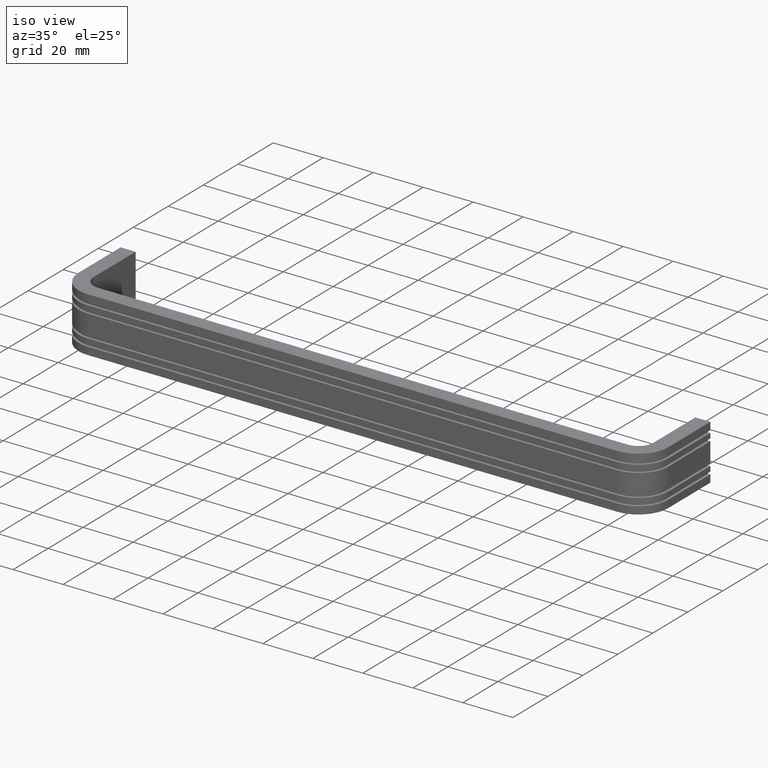
[diagram: clean part render]
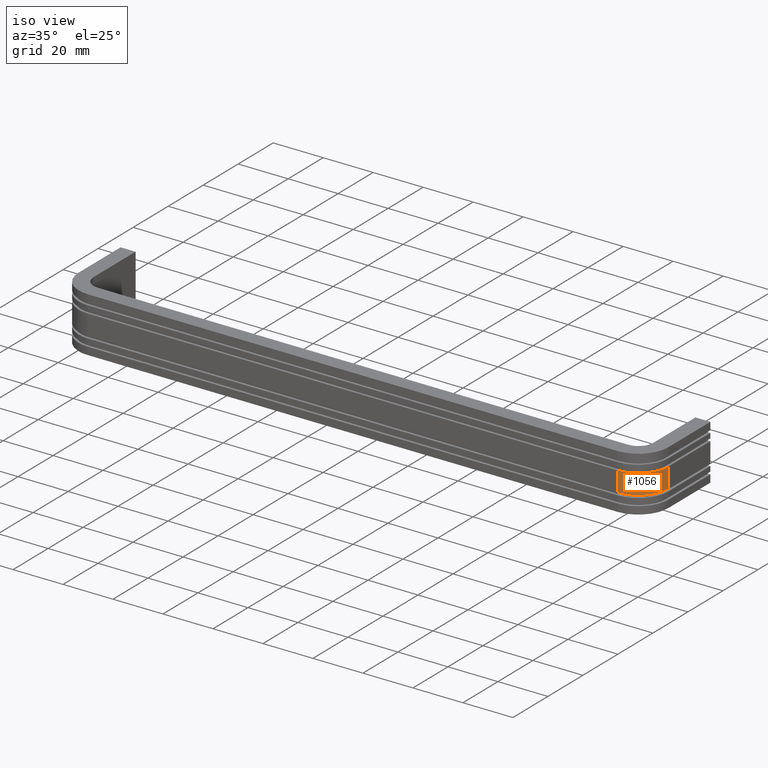
[diagram: same view with one face highlighted and labeled with its STEP entity id]
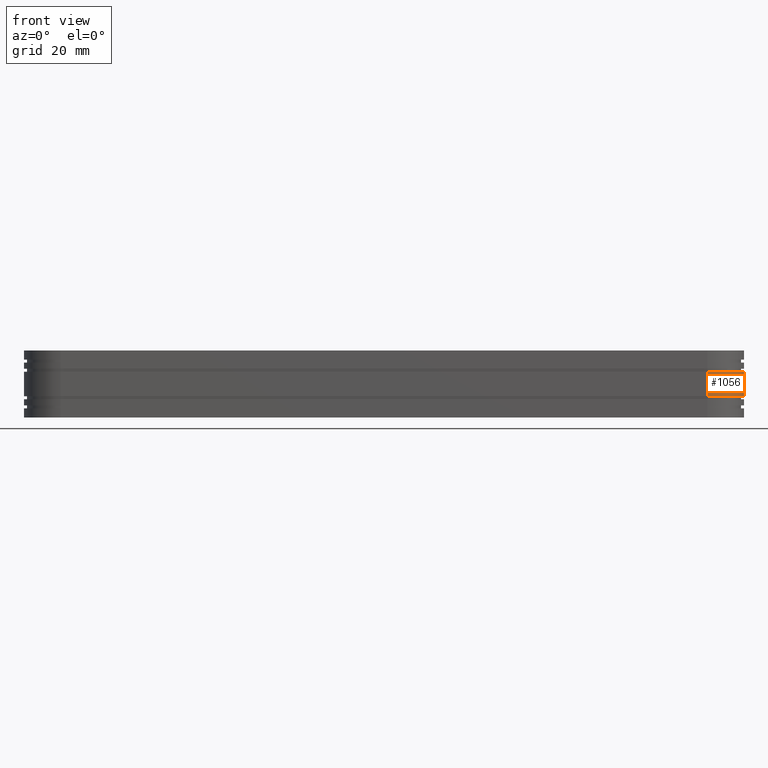
[diagram: same view with one face highlighted and labeled with its STEP entity id]
A machine part, iso view. The second image highlights one B-rep face of the part: STEP entity #1056.
A second angle (front view) of the same face is appended — the face is thin or edge-on in the first view.
In plain terms, the highlighted face is a freeform B-spline surface patch.
Its self-contained STEP definition (entity closure, byte-faithful):
#581=CARTESIAN_POINT('',(232.999900000000000,-24.0,4.0));
#582=VERTEX_POINT('',#581);
#590=CARTESIAN_POINT('',(232.999900000000000,-24.0,-4.0));
#591=VERTEX_POINT('',#590);
#592=CARTESIAN_POINT('',(232.999900000000000,-24.0,-4.0));
#593=CARTESIAN_POINT('',(232.999900000000000,-24.0,4.0));
#594=QUASI_UNIFORM_CURVE('',1,(#592,#593),.UNSPECIFIED.,.F.,.U.);
#595=EDGE_CURVE('',#591,#582,#594,.T.);
#1004=CARTESIAN_POINT('',(232.995787899706700,-23.685876620305521,-4.200000000000000));
#1005=CARTESIAN_POINT('',(232.995787899706700,-23.685876620305521,4.205000000000000));
#1006=CARTESIAN_POINT('',(233.341807349163390,-36.899826281864229,-4.199999999999999));
#1007=CARTESIAN_POINT('',(233.341807349163390,-36.899826281864229,4.205000000000001));
#1008=CARTESIAN_POINT('',(220.156051270368810,-35.970293201150056,-4.200000000000000));
#1009=CARTESIAN_POINT('',(220.156051270368810,-35.970293201150056,4.205000000000000));
#1017=(BOUNDED_SURFACE()B_SPLINE_SURFACE(1,2,((#1004,#1006,#1008),(#1005,#1007,#1009)),.UNSPECIFIED.,.F.,.F.,.U.)B_SPLINE_SURFACE_WITH_KNOTS((2,2),(3,3),(0.0,8.405000000000001),(0.0,21.253717511290890),.UNSPECIFIED.)GEOMETRIC_REPRESENTATION_ITEM()RATIONAL_B_SPLINE_SURFACE(((1.0,0.670944078209729,0.996392935321324),(1.0,0.670944078209729,0.996392935321324)))REPRESENTATION_ITEM('')SURFACE());
#1018=CARTESIAN_POINT('',(220.999900000000000,-36.0,4.0));
#1019=VERTEX_POINT('',#1018);
#1020=CARTESIAN_POINT('',(220.999900000000000,-36.000000000000007,4.0));
#1021=CARTESIAN_POINT('',(232.999900000000050,-36.000000000000014,4.000000000000000));
#1022=CARTESIAN_POINT('',(232.999900000000000,-24.0,4.0));
#1030=(BOUNDED_CURVE()B_SPLINE_CURVE(2,(#1020,#1021,#1022),.UNSPECIFIED.,.F.,.U.)CURVE()GEOMETRIC_REPRESENTATION_ITEM()QUASI_UNIFORM_CURVE()RATIONAL_B_SPLINE_CURVE((1.0,0.707106781186548,1.0))REPRESENTATION_ITEM(''));
#1031=EDGE_CURVE('',#1019,#582,#1030,.T.);
#1032=ORIENTED_EDGE('',*,*,#1031,.F.);
#1033=CARTESIAN_POINT('',(220.999900000000000,-36.0,-4.0));
#1034=VERTEX_POINT('',#1033);
#1035=CARTESIAN_POINT('',(220.999900000000000,-36.0,-4.0));
#1036=CARTESIAN_POINT('',(220.999900000000000,-36.0,4.0));
#1037=QUASI_UNIFORM_CURVE('',1,(#1035,#1036),.UNSPECIFIED.,.F.,.U.);
#1038=EDGE_CURVE('',#1034,#1019,#1037,.T.);
#1039=ORIENTED_EDGE('',*,*,#1038,.F.);
#1040=CARTESIAN_POINT('',(220.999900000000000,-36.000000000000007,-4.0));
#1041=CARTESIAN_POINT('',(232.999900000000050,-36.000000000000014,-4.000000000000000));
#1042=CARTESIAN_POINT('',(232.999900000000000,-24.0,-4.0));
#1050=(BOUNDED_CURVE()B_SPLINE_CURVE(2,(#1040,#1041,#1042),.UNSPECIFIED.,.F.,.U.)CURVE()GEOMETRIC_REPRESENTATION_ITEM()QUASI_UNIFORM_CURVE()RATIONAL_B_SPLINE_CURVE((1.0,0.707106781186548,1.0))REPRESENTATION_ITEM(''));
#1051=EDGE_CURVE('',#1034,#591,#1050,.T.);
#1052=ORIENTED_EDGE('',*,*,#1051,.T.);
#1053=ORIENTED_EDGE('',*,*,#595,.T.);
#1054=EDGE_LOOP('',(#1032,#1039,#1052,#1053));
#1055=FACE_OUTER_BOUND('',#1054,.T.);
#1056=ADVANCED_FACE('',(#1055),#1017,.T.);